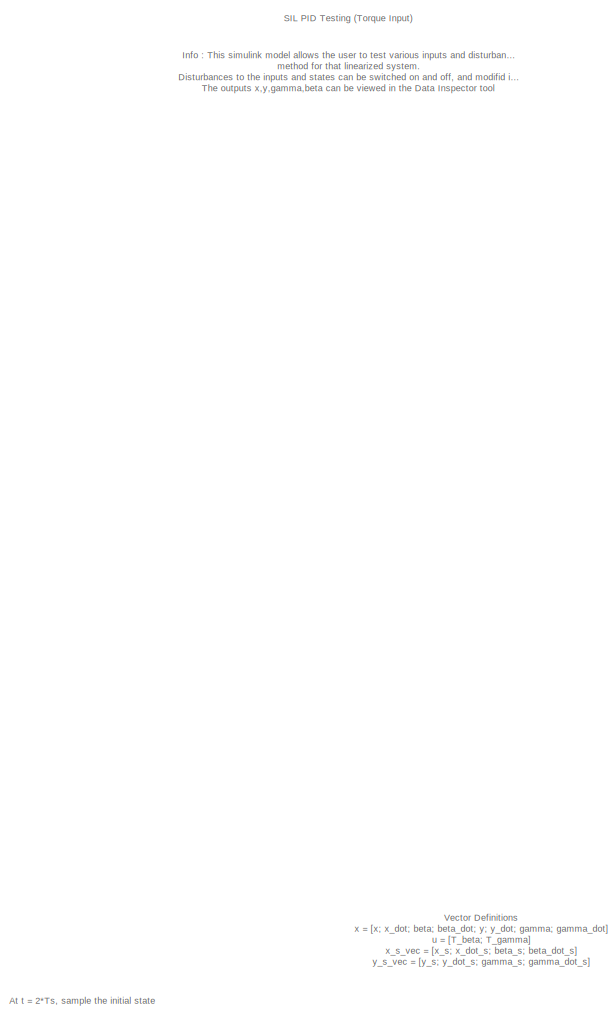
[diagram: root canvas - part 1/2, middle left region]
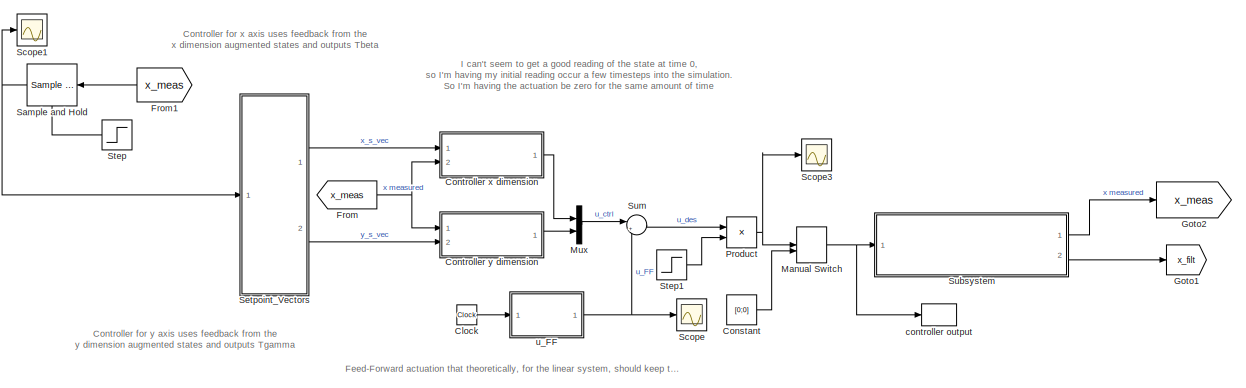
[diagram: root canvas - part 2/2, full width, bottom band]
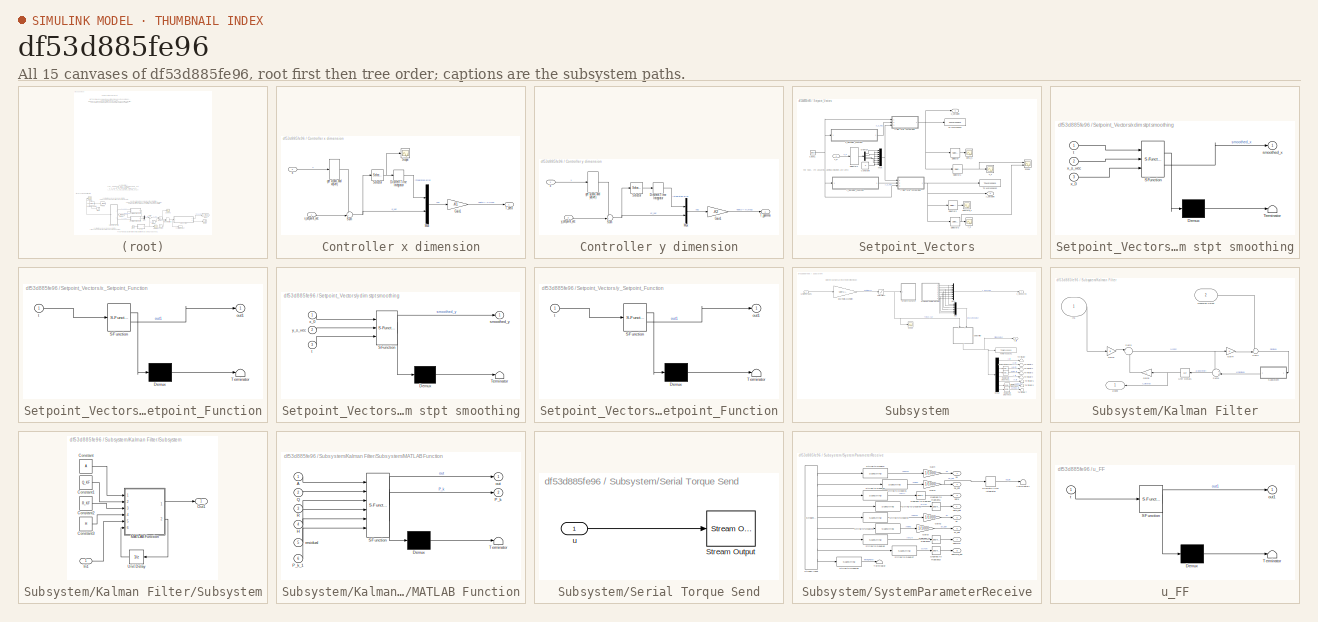
[diagram: thumbnail index - all 15 canvases of the model, root first then tree order]
MODEL slx_df53d885fe96
KIND model
CONFIG AbsTol = auto
CONFIG EnableMultiTasking = off
CONFIG FixedStep = Ts
CONFIG MaxStep = auto
CONFIG MinStep = auto
CONFIG RelTol = 1e-9
CONFIG SampleTimeConstraint = Unconstrained
CONFIG SolverName = FixedStepAuto
CONFIG StartTime = tspan(1)
CONFIG StopTime = tspan(2)
BLOCK [Clock] Clock
BLOCK [Constant] Constant
  Value = [0;0]
BLOCK [SubSystem] Controller x dimension
  Ports = [2, 1]
  RequestExecContextInheritance = off
BLOCK [DiscreteIntegrator] Controller x dimension/Discrete-Time Integrator
  ICPrevOutput = DiscIntNeverNeededParam
  ICPrevScaledInput = DiscIntNeverNeededParam
  InitialConditionSetting = Auto
  Ports = [1, 1]
  SampleTime = Ts
BLOCK [Gain] Controller x dimension/Gain1
  Gain = -K1
  Multiplication = Matrix(K*u)
BLOCK [Mux] Controller x dimension/Mux
  DisplayOption = bar
  Inputs = 2
  Ports = [2, 1]
BLOCK [Scope] Controller x dimension/Scope
  Floating = off
  NumInputPorts = 1
  Ports = [1]
  ScopeSpecificationString = Simulink.scopes.TimeScopeBlockCfg('CurrentConfiguration', extmgr.ConfigurationSet(extmgr.Configuration('Core','General UI',true),extmgr.Configuration('Core','Source UI',true),extmgr.Configuration('Sources','WiredSimulink',true,'DataLoggingVariableName','ScopeData1'),extmgr.Configuration('Visuals','Time Domain',true,'SerializedDisplays',{struct('MinYLimReal','-0.12038','MaxYLimReal','0.21338','YLab...<+1409ch>
BLOCK [Selector] Controller x dimension/Selector
  IndexOptions = Index vector (dialog)
  Indices = [1 ]
  InputPortWidth = 4
  OutputSizes = 1
  Ports = [1, 1]
BLOCK [Sum] Controller x dimension/Sum
  Inputs = -+|
  Ports = [2, 1]
BLOCK [Outport] Controller x dimension/T_beta
BLOCK [Selector] Controller x dimension/get x(pos) and xd(vel)
  IndexOptions = Index vector (dialog)
  Indices = [1:4]
  InputPortWidth = 8
  OutputSizes = 1
  Ports = [1, 1]
BLOCK [Inport] Controller x dimension/x
  Port = 2
BLOCK [Inport] Controller x dimension/x_setpoint_vec
BLOCK [SubSystem] Controller y dimension
  NameLocation = top
  Ports = [2, 1]
  RequestExecContextInheritance = off
BLOCK [DiscreteIntegrator] Controller y dimension/Discrete-Time Integrator
  ICPrevOutput = DiscIntNeverNeededParam
  ICPrevScaledInput = DiscIntNeverNeededParam
  InitialConditionSetting = Auto
  Ports = [1, 1]
  SampleTime = Ts
BLOCK [Gain] Controller y dimension/Gain1
  Gain = -K2
  Multiplication = Matrix(K*u)
BLOCK [Mux] Controller y dimension/Mux
  DisplayOption = bar
  Inputs = 2
  Ports = [2, 1]
BLOCK [Selector] Controller y dimension/Selector
  IndexOptions = Index vector (dialog)
  Indices = [1 ]
  InputPortWidth = 4
  OutputSizes = 1
  Ports = [1, 1]
BLOCK [Sum] Controller y dimension/Sum
  Inputs = -+|
  Ports = [2, 1]
BLOCK [Outport] Controller y dimension/T_gamma
BLOCK [Selector] Controller y dimension/get y(pos) and yd(vel)
  IndexOptions = Index vector (dialog)
  Indices = [5:8]
  InputPortWidth = 8
  OutputSizes = 1
  Ports = [1, 1]
BLOCK [Inport] Controller y dimension/x
BLOCK [Inport] Controller y dimension/y_setpoint_vec
  Port = 2
BLOCK [From] From
  GotoTag = x_meas
BLOCK [From] From1
  GotoTag = x_meas
  NameLocation = top
BLOCK [Goto] Goto1
  GotoTag = x_filt
BLOCK [Goto] Goto2
  GotoTag = x_meas
BLOCK [ManualSwitch] Manual Switch
BLOCK [Mux] Mux
  DisplayOption = bar
  Inputs = 2
  Ports = [2, 1]
BLOCK [Product] Product
  Ports = [2, 1]
BLOCK [Reference] Sample and Hold  REF=dspsigops/Sample
and Hold
  NameLocation = top
  Ports = [1, 1, 0, 1]
  SourceBlock = dspsigops/Sample\nand Hold
  SourceProductBaseCode = DS
  SourceType = Sample and Hold
BLOCK [Scope] Scope
  Floating = off
  NumInputPorts = 1
  Ports = [1]
  ScopeSpecificationString = Simulink.scopes.TimeScopeBlockCfg('CurrentConfiguration', extmgr.ConfigurationSet(extmgr.Configuration('Core','General UI',true),extmgr.Configuration('Core','Source UI',true),extmgr.Configuration('Sources','WiredSimulink',true,'DataLoggingVariableName','ScopeData1'),extmgr.Configuration('Visuals','Time Domain',true,'SerializedDisplays',{struct('MinYLimReal','-0.0162','MaxYLimReal','0.01149','YLabe...<+1389ch>
BLOCK [Scope] Scope1
  Floating = off
  NumInputPorts = 1
  Ports = [1]
  ScopeSpecificationString = Simulink.scopes.TimeScopeBlockCfg('CurrentConfiguration', extmgr.ConfigurationSet(extmgr.Configuration('Core','General UI',true),extmgr.Configuration('Core','Source UI',true),extmgr.Configuration('Sources','WiredSimulink',true,'DataLoggingVariableName','ScopeData2'),extmgr.Configuration('Visuals','Time Domain',true,'SerializedDisplays',{struct('MinYLimReal','-0.19772','MaxYLimReal','0.02948','YLab...<+1558ch>
BLOCK [Scope] Scope3
  Floating = off
  NumInputPorts = 1
  Ports = [1]
  ScopeSpecificationString = Simulink.scopes.TimeScopeBlockCfg('CurrentConfiguration', extmgr.ConfigurationSet(extmgr.Configuration('Core','General UI',true),extmgr.Configuration('Core','Source UI',true),extmgr.Configuration('Sources','WiredSimulink',true,'DataLoggingVariableName','ScopeData3'),extmgr.Configuration('Visuals','Time Domain',true,'SerializedDisplays',{struct('MinYLimReal','-181.03273','MaxYLimReal','156.93243','...<+1480ch>
BLOCK [SubSystem] Setpoint_Vectors
  Ports = [1, 2]
  RequestExecContextInheritance = off
BLOCK [Clock] Setpoint_Vectors/Clock1
BLOCK [Constant] Setpoint_Vectors/Constant
  Value = 0
BLOCK [Demux] Setpoint_Vectors/Demux
  Ports = [1, 4]
BLOCK [Mux] Setpoint_Vectors/Mux
  DisplayOption = bar
  Inputs = 8
  Ports = [8, 1]
BLOCK [Scope] Setpoint_Vectors/Scope
  Floating = off
  NumInputPorts = 2
  Ports = [2]
  ScopeSpecificationString = Simulink.scopes.TimeScopeBlockCfg('CurrentConfiguration', extmgr.ConfigurationSet(extmgr.Configuration('Core','General UI',true),extmgr.Configuration('Core','Source UI',true),extmgr.Configuration('Sources','WiredSimulink',true,'DataLoggingVariableName','ScopeData7'),extmgr.Configuration('Visuals','Time Domain',true,'SerializedDisplays',{struct('MinYLimReal','-0.1875','MaxYLimReal','0.1875','YLabel...<+1418ch>
BLOCK [Selector] Setpoint_Vectors/Selector
  IndexOptions = Index vector (dialog)
  Indices = [3]
  InputPortWidth = 4
  OutputSizes = 1
  Ports = [1, 1]
BLOCK [Selector] Setpoint_Vectors/Selector1
  IndexOptions = Index vector (dialog)
  Indices = [1]
  InputPortWidth = 4
  OutputSizes = 1
  Ports = [1, 1]
BLOCK [Selector] Setpoint_Vectors/Selector2
  IndexOptions = Index vector (dialog)
  Indices = [3]
  InputPortWidth = 4
  OutputSizes = 1
  Ports = [1, 1]
BLOCK [Selector] Setpoint_Vectors/Selector3
  IndexOptions = Index vector (dialog)
  Indices = [1]
  InputPortWidth = 4
  OutputSizes = 1
  Ports = [1, 1]
BLOCK [Selector] Setpoint_Vectors/Selector4
  IndexOptions = Index vector (dialog)
  Indices = [1 3 5 7]
  InputPortWidth = 8
  OutputSizes = 1
  Ports = [1, 1]
BLOCK [ToWorkspace] Setpoint_Vectors/To Workspace
  FixptAsFi = on
  MaxDataPoints = inf
  Ports = [1]
  SampleTime = -1
  VariableName = x_s_vec
BLOCK [ToWorkspace] Setpoint_Vectors/To Workspace2
  FixptAsFi = on
  MaxDataPoints = inf
  Ports = [1]
  SampleTime = -1
  VariableName = y_s_vec
BLOCK [Scope] Setpoint_Vectors/beta_s
  Floating = off
  NumInputPorts = 1
  Ports = [1]
  ScopeSpecificationString = Simulink.scopes.TimeScopeBlockCfg('CurrentConfiguration', extmgr.ConfigurationSet(extmgr.Configuration('Core','General UI',true),extmgr.Configuration('Core','Source UI',true),extmgr.Configuration('Sources','WiredSimulink',true,'DataLoggingVariableName','ScopeData2'),extmgr.Configuration('Visuals','Time Domain',true,'SerializedDisplays',{struct('MinYLimReal','-1.15265','MaxYLimReal','0.83023','YLab...<+1411ch>
BLOCK [Scope] Setpoint_Vectors/gamma_s
  Floating = off
  NumInputPorts = 1
  Ports = [1]
  ScopeSpecificationString = Simulink.scopes.TimeScopeBlockCfg('CurrentConfiguration', extmgr.ConfigurationSet(extmgr.Configuration('Core','General UI',true),extmgr.Configuration('Core','Source UI',true),extmgr.Configuration('Sources','WiredSimulink',true,'DataLoggingVariableName','ScopeData5'),extmgr.Configuration('Visuals','Time Domain',true,'SerializedDisplays',{struct('MinYLimReal','-0.02268','MaxYLimReal','0.01988','YLab...<+1423ch>
BLOCK [SubSystem] Setpoint_Vectors/x dim stpt smoothing
  ErrorFcn = Stateflow.Translate.translate
  PermitHierarchicalResolution = ExplicitOnly
  Ports = [3, 1]
  RequestExecContextInheritance = off
  SFBlockType = MATLAB Function
  TreatAsAtomicUnit = on
BLOCK [Demux] Setpoint_Vectors/x dim stpt smoothing/ Demux 
  Outputs = 1
  Ports = [1, 1]
BLOCK [S-Function] Setpoint_Vectors/x dim stpt smoothing/ SFunction 
  EnableBusSupport = on
  FunctionName = sf_sfun
  Parameters = Tau
  PortCounts = [3 2]
  Ports = [3, 2]
  SFcnIsStateOwnerBlock = off
  SFunctionDeploymentMode = off
  Tag = Stateflow S-Function 6
BLOCK [Terminator] Setpoint_Vectors/x dim stpt smoothing/ Terminator 
BLOCK [Outport] Setpoint_Vectors/x dim stpt smoothing/smoothed_x
BLOCK [Inport] Setpoint_Vectors/x dim stpt smoothing/t
BLOCK [Inport] Setpoint_Vectors/x dim stpt smoothing/x_0
  Port = 3
BLOCK [Inport] Setpoint_Vectors/x dim stpt smoothing/x_s_vec
  Port = 2
BLOCK [Inport] Setpoint_Vectors/x_0
BLOCK [SubSystem] Setpoint_Vectors/x_Setpoint_Function
  ErrorFcn = Stateflow.Translate.translate
  PermitHierarchicalResolution = ExplicitOnly
  Ports = [1, 1]
  RequestExecContextInheritance = off
  SFBlockType = MATLAB Function
  TreatAsAtomicUnit = on
BLOCK [Demux] Setpoint_Vectors/x_Setpoint_Function/ Demux 
  Outputs = 1
  Ports = [1, 1]
BLOCK [S-Function] Setpoint_Vectors/x_Setpoint_Function/ SFunction 
  EnableBusSupport = on
  FunctionName = sf_sfun
  PortCounts = [1 2]
  Ports = [1, 2]
  SFcnIsStateOwnerBlock = off
  SFunctionDeploymentMode = off
  Tag = Stateflow S-Function 2
BLOCK [Terminator] Setpoint_Vectors/x_Setpoint_Function/ Terminator 
BLOCK [Outport] Setpoint_Vectors/x_Setpoint_Function/out1
BLOCK [Inport] Setpoint_Vectors/x_Setpoint_Function/t
BLOCK [Scope] Setpoint_Vectors/x_s
  Floating = off
  NumInputPorts = 1
  Ports = [1]
  ScopeSpecificationString = Simulink.scopes.TimeScopeBlockCfg('CurrentConfiguration', extmgr.ConfigurationSet(extmgr.Configuration('Core','General UI',true),extmgr.Configuration('Core','Source UI',true),extmgr.Configuration('Sources','WiredSimulink',true,'DataLoggingVariableName','ScopeData4'),extmgr.Configuration('Visuals','Time Domain',true,'SerializedDisplays',{struct('MinYLimReal','-0.0419','MaxYLimReal','0.00466','YLabe...<+1444ch>
BLOCK [Outport] Setpoint_Vectors/x_setpoint
BLOCK [SubSystem] Setpoint_Vectors/y dim stpt smoothing
  ErrorFcn = Stateflow.Translate.translate
  PermitHierarchicalResolution = ExplicitOnly
  Ports = [3, 1]
  RequestExecContextInheritance = off
  SFBlockType = MATLAB Function
  TreatAsAtomicUnit = on
BLOCK [Demux] Setpoint_Vectors/y dim stpt smoothing/ Demux 
  Outputs = 1
  Ports = [1, 1]
BLOCK [S-Function] Setpoint_Vectors/y dim stpt smoothing/ SFunction 
  EnableBusSupport = on
  FunctionName = sf_sfun
  Parameters = Tau
  PortCounts = [3 2]
  Ports = [3, 2]
  SFcnIsStateOwnerBlock = off
  SFunctionDeploymentMode = off
  Tag = Stateflow S-Function 1
BLOCK [Terminator] Setpoint_Vectors/y dim stpt smoothing/ Terminator 
BLOCK [Outport] Setpoint_Vectors/y dim stpt smoothing/smoothed_y
BLOCK [Inport] Setpoint_Vectors/y dim stpt smoothing/t
  Port = 3
BLOCK [Inport] Setpoint_Vectors/y dim stpt smoothing/x_0
BLOCK [Inport] Setpoint_Vectors/y dim stpt smoothing/y_s_vec
  Port = 2
BLOCK [SubSystem] Setpoint_Vectors/y_Setpoint_Function
  ErrorFcn = Stateflow.Translate.translate
  PermitHierarchicalResolution = ExplicitOnly
  Ports = [1, 1]
  RequestExecContextInheritance = off
  SFBlockType = MATLAB Function
  TreatAsAtomicUnit = on
BLOCK [Demux] Setpoint_Vectors/y_Setpoint_Function/ Demux 
  Outputs = 1
  Ports = [1, 1]
BLOCK [S-Function] Setpoint_Vectors/y_Setpoint_Function/ SFunction 
  EnableBusSupport = on
  FunctionName = sf_sfun
  PortCounts = [1 2]
  Ports = [1, 2]
  SFcnIsStateOwnerBlock = off
  SFunctionDeploymentMode = off
  Tag = Stateflow S-Function 3
BLOCK [Terminator] Setpoint_Vectors/y_Setpoint_Function/ Terminator 
BLOCK [Outport] Setpoint_Vectors/y_Setpoint_Function/out1
BLOCK [Inport] Setpoint_Vectors/y_Setpoint_Function/t
BLOCK [Scope] Setpoint_Vectors/y_s
  Floating = off
  NumInputPorts = 1
  Ports = [1]
  ScopeSpecificationString = Simulink.scopes.TimeScopeBlockCfg('CurrentConfiguration', extmgr.ConfigurationSet(extmgr.Configuration('Core','General UI',true),extmgr.Configuration('Core','Source UI',true),extmgr.Configuration('Sources','WiredSimulink',true,'DataLoggingVariableName','ScopeData6'),extmgr.Configuration('Visuals','Time Domain',true,'SerializedDisplays',{struct('MinYLimReal','-0.05539','MaxYLimReal','0.00615','YLab...<+1393ch>
BLOCK [Outport] Setpoint_Vectors/y_setpoint
  Port = 2
BLOCK [Step] Step
  NameLocation = top
  SampleTime = 0
  Time = 2*Ts
BLOCK [Step] Step1
  SampleTime = 0
  Time = 2*Ts
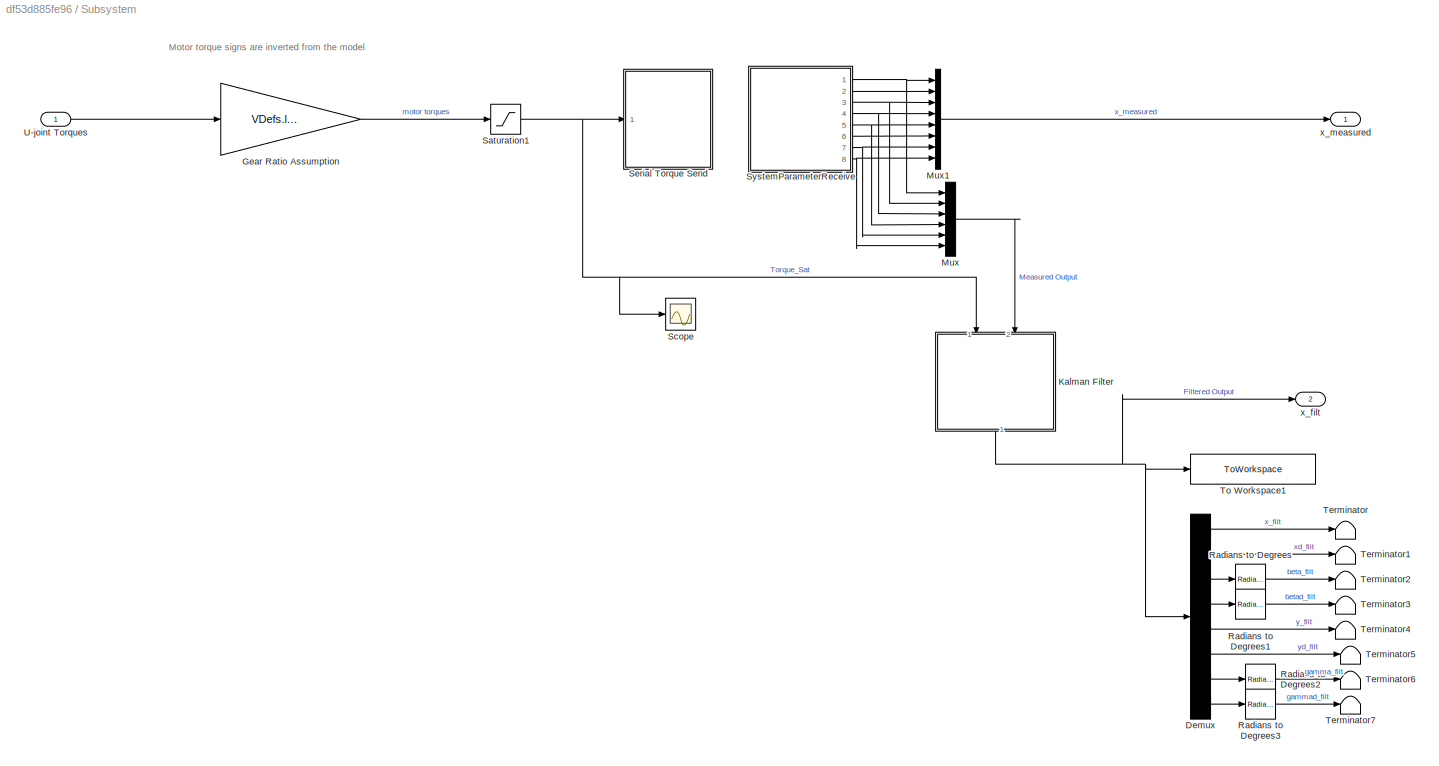
BLOCK [SubSystem] Subsystem
  Ports = [1, 2]
  RequestExecContextInheritance = off
BLOCK [Demux] Subsystem/Demux
  Commented = on
  Outputs = 8
  Ports = [1, 8]
BLOCK [Gain] Subsystem/Gear Ratio Assumption
  Gain = VDefs.l_carm/VDefs.lp
BLOCK [SubSystem] Subsystem/Kalman Filter
  Commented = on
  NameLocation = left
  Ports = [2, 1]
  RequestExecContextInheritance = off
BLOCK [Gain] Subsystem/Kalman Filter/Gain3
  Gain = B
  Multiplication = Matrix(K*u)
BLOCK [Gain] Subsystem/Kalman Filter/Gain4
  Gain = H
  Multiplication = Matrix(K*u)
BLOCK [Gain] Subsystem/Kalman Filter/Gain5
  Gain = A
  Multiplication = Matrix(K*u)
BLOCK [Inport] Subsystem/Kalman Filter/In1
  IconDisplay = Port number and signal name
BLOCK [Inport] Subsystem/Kalman Filter/Measured Output
  IconDisplay = Port number and signal name
  Port = 2
BLOCK [SubSystem] Subsystem/Kalman Filter/Subsystem
  Ports = [1, 1]
  RequestExecContextInheritance = off
BLOCK [Constant] Subsystem/Kalman Filter/Subsystem/Constant
  Value = A
  VectorParams1D = off
BLOCK [Constant] Subsystem/Kalman Filter/Subsystem/Constant1
  Value = Q_KF
  VectorParams1D = off
BLOCK [Constant] Subsystem/Kalman Filter/Subsystem/Constant2
  Value = R_KF
  VectorParams1D = off
BLOCK [Constant] Subsystem/Kalman Filter/Subsystem/Constant3
  Value = H
  VectorParams1D = off
BLOCK [Inport] Subsystem/Kalman Filter/Subsystem/In1
BLOCK [SubSystem] Subsystem/Kalman Filter/Subsystem/MATLAB Function
  ErrorFcn = Stateflow.Translate.translate
  PermitHierarchicalResolution = ExplicitOnly
  Ports = [6, 2]
  RequestExecContextInheritance = off
  SFBlockType = MATLAB Function
  TreatAsAtomicUnit = on
BLOCK [Demux] Subsystem/Kalman Filter/Subsystem/MATLAB Function/ Demux 
  Outputs = 1
  Ports = [1, 1]
BLOCK [S-Function] Subsystem/Kalman Filter/Subsystem/MATLAB Function/ SFunction 
  EnableBusSupport = on
  FunctionName = sf_sfun
  PortCounts = [6 3]
  Ports = [6, 3]
  SFcnIsStateOwnerBlock = off
  SFunctionDeploymentMode = off
  Tag = Stateflow S-Function 4
BLOCK [Terminator] Subsystem/Kalman Filter/Subsystem/MATLAB Function/ Terminator 
BLOCK [Inport] Subsystem/Kalman Filter/Subsystem/MATLAB Function/A
BLOCK [Inport] Subsystem/Kalman Filter/Subsystem/MATLAB Function/H
  Port = 4
BLOCK [Outport] Subsystem/Kalman Filter/Subsystem/MATLAB Function/P_k
  Port = 2
  VectorParamsAs1DForOutWhenUnconnected = off
BLOCK [Inport] Subsystem/Kalman Filter/Subsystem/MATLAB Function/P_k_1
  Port = 6
BLOCK [Inport] Subsystem/Kalman Filter/Subsystem/MATLAB Function/Q
  Port = 2
BLOCK [Inport] Subsystem/Kalman Filter/Subsystem/MATLAB Function/R
  Port = 3
BLOCK [Outport] Subsystem/Kalman Filter/Subsystem/MATLAB Function/out
  VectorParamsAs1DForOutWhenUnconnected = off
BLOCK [Inport] Subsystem/Kalman Filter/Subsystem/MATLAB Function/residual
  Port = 5
BLOCK [Outport] Subsystem/Kalman Filter/Subsystem/Out1
  VectorParamsAs1DForOutWhenUnconnected = off
BLOCK [UnitDelay] Subsystem/Kalman Filter/Subsystem/Unit Delay
  HasFrameUpgradeWarning = on
  InitialCondition = zeros(8,8)
  SampleTime = Ts
BLOCK [Sum] Subsystem/Kalman Filter/Sum3
  Inputs = |++
  Ports = [2, 1]
BLOCK [Sum] Subsystem/Kalman Filter/Sum4
  Inputs = +-|
  Ports = [2, 1]
BLOCK [Sum] Subsystem/Kalman Filter/Sum5
  Inputs = ++|
  Ports = [2, 1]
BLOCK [UnitDelay] Subsystem/Kalman Filter/Unit Delay1
  HasFrameUpgradeWarning = on
  InitialCondition = zeros(8,1)
  SampleTime = Ts
BLOCK [Outport] Subsystem/Kalman Filter/a-post
  IconDisplay = Signal name
  VectorParamsAs1DForOutWhenUnconnected = off
BLOCK [Mux] Subsystem/Mux
  DisplayOption = bar
  Inputs = 6
  Ports = [6, 1]
BLOCK [Mux] Subsystem/Mux1
  DisplayOption = bar
  Inputs = 8
  Ports = [8, 1]
BLOCK [Reference] Subsystem/Radians to Degrees  REF=simulink_extras/Transformations/Radians
to Degrees
  Commented = on
  Ports = [1, 1]
  SourceBlock = simulink_extras/Transformations/Radians\nto Degrees
  SourceProductBaseCode = SL
  SourceType = RadiansToDegrees
BLOCK [Reference] Subsystem/Radians to Degrees1  REF=simulink_extras/Transformations/Radians
to Degrees
  Commented = on
  Ports = [1, 1]
  SourceBlock = simulink_extras/Transformations/Radians\nto Degrees
  SourceProductBaseCode = SL
  SourceType = RadiansToDegrees
BLOCK [Reference] Subsystem/Radians to Degrees2  REF=simulink_extras/Transformations/Radians
to Degrees
  Commented = on
  Ports = [1, 1]
  SourceBlock = simulink_extras/Transformations/Radians\nto Degrees
  SourceProductBaseCode = SL
  SourceType = RadiansToDegrees
BLOCK [Reference] Subsystem/Radians to Degrees3  REF=simulink_extras/Transformations/Radians
to Degrees
  Commented = on
  Ports = [1, 1]
  SourceBlock = simulink_extras/Transformations/Radians\nto Degrees
  SourceProductBaseCode = SL
  SourceType = RadiansToDegrees
BLOCK [Saturate] Subsystem/Saturation1
  LowerLimit = -1.5
  UpperLimit = 1.5
BLOCK [Scope] Subsystem/Scope
  Floating = off
  NumInputPorts = 1
  Ports = [1]
  ScopeSpecificationString = Simulink.scopes.TimeScopeBlockCfg('CurrentConfiguration', extmgr.ConfigurationSet(extmgr.Configuration('Core','General UI',true),extmgr.Configuration('Core','Source UI',true),extmgr.Configuration('Sources','WiredSimulink',true,'DataLoggingVariableName','ScopeData1'),extmgr.Configuration('Visuals','Time Domain',true,'SerializedDisplays',{struct('MinYLimReal','-1.875','MaxYLimReal','1.875','YLabelRe...<+1418ch>
BLOCK [SubSystem] Subsystem/Serial Torque Send
  Ports = [1]
  RequestExecContextInheritance = off
BLOCK [Reference] Subsystem/Serial Torque Send/Stream Output  REF=sldrtlib/Stream Output
  AttributesFormatString = Serial Port [6]
  Ports = [1]
  SourceBlock = sldrtlib/Stream Output
  SourceProductBaseCode = WT
  SourceType = Simulink Desktop Real-Time Stream Output
BLOCK [Inport] Subsystem/Serial Torque Send/u
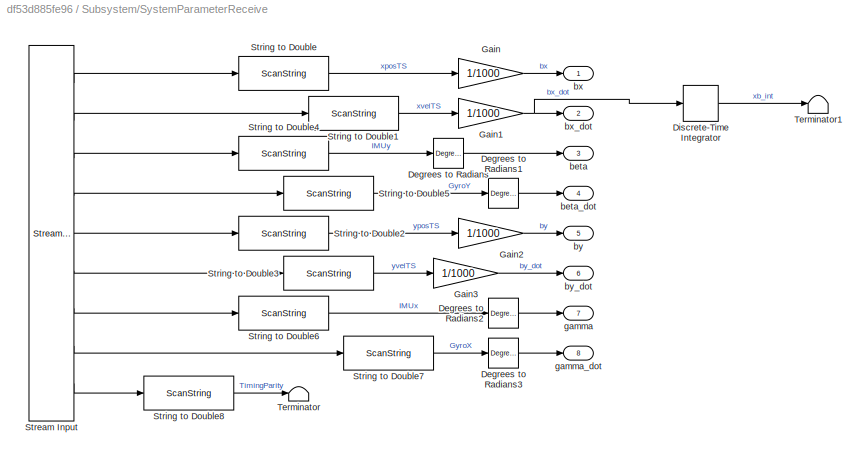
BLOCK [SubSystem] Subsystem/SystemParameterReceive
  Ports = [0, 8]
  RequestExecContextInheritance = off
BLOCK [Reference] Subsystem/SystemParameterReceive/Degrees to Radians  REF=simulink_extras/Transformations/Degrees to
Radians
  Ports = [1, 1]
  SourceBlock = simulink_extras/Transformations/Degrees to\nRadians
  SourceProductBaseCode = SL
  SourceType = DegreesToRadians
BLOCK [Reference] Subsystem/SystemParameterReceive/Degrees to Radians1  REF=simulink_extras/Transformations/Degrees to
Radians
  Ports = [1, 1]
  SourceBlock = simulink_extras/Transformations/Degrees to\nRadians
  SourceProductBaseCode = SL
  SourceType = DegreesToRadians
BLOCK [Reference] Subsystem/SystemParameterReceive/Degrees to Radians2  REF=simulink_extras/Transformations/Degrees to
Radians
  Ports = [1, 1]
  SourceBlock = simulink_extras/Transformations/Degrees to\nRadians
  SourceProductBaseCode = SL
  SourceType = DegreesToRadians
BLOCK [Reference] Subsystem/SystemParameterReceive/Degrees to Radians3  REF=simulink_extras/Transformations/Degrees to
Radians
  Ports = [1, 1]
  SourceBlock = simulink_extras/Transformations/Degrees to\nRadians
  SourceProductBaseCode = SL
  SourceType = DegreesToRadians
BLOCK [DiscreteIntegrator] Subsystem/SystemParameterReceive/Discrete-Time Integrator
  ICPrevOutput = DiscIntNeverNeededParam
  ICPrevScaledInput = DiscIntNeverNeededParam
  InitialConditionSetting = Auto
  Ports = [1, 1]
  SampleTime = Ts
BLOCK [Gain] Subsystem/SystemParameterReceive/Gain
  Gain = 1/1000
  OutDataTypeStr = double
BLOCK [Gain] Subsystem/SystemParameterReceive/Gain1
  Gain = 1/1000
  OutDataTypeStr = double
BLOCK [Gain] Subsystem/SystemParameterReceive/Gain2
  Gain = 1/1000
  OutDataTypeStr = double
BLOCK [Gain] Subsystem/SystemParameterReceive/Gain3
  Gain = 1/1000
  OutDataTypeStr = double
BLOCK [Reference] Subsystem/SystemParameterReceive/Stream Input  REF=sldrtlib/Stream Input
  AttributesFormatString = Serial Port [6]
  Ports = [0, 9]
  SourceBlock = sldrtlib/Stream Input
  SourceProductBaseCode = WT
  SourceType = Simulink Desktop Real-Time Stream Input
BLOCK [ScanString] Subsystem/SystemParameterReceive/String to Double
  Format = "%d"
  Ports = [1, 1]
BLOCK [ScanString] Subsystem/SystemParameterReceive/String to Double1
  Format = "%lf"
  Ports = [1, 1]
BLOCK [ScanString] Subsystem/SystemParameterReceive/String to Double2
  Format = "%lf"
  Ports = [1, 1]
BLOCK [ScanString] Subsystem/SystemParameterReceive/String to Double3
  Format = "%lf"
  Ports = [1, 1]
BLOCK [ScanString] Subsystem/SystemParameterReceive/String to Double4
  Format = "%lf"
  Ports = [1, 1]
BLOCK [ScanString] Subsystem/SystemParameterReceive/String to Double5
  Format = "%lf"
  Ports = [1, 1]
BLOCK [ScanString] Subsystem/SystemParameterReceive/String to Double6
  Format = "%lf"
  Ports = [1, 1]
BLOCK [ScanString] Subsystem/SystemParameterReceive/String to Double7
  Format = "%lf"
  Ports = [1, 1]
BLOCK [ScanString] Subsystem/SystemParameterReceive/String to Double8
  Format = "%lf"
  Ports = [1, 1]
BLOCK [Terminator] Subsystem/SystemParameterReceive/Terminator
BLOCK [Terminator] Subsystem/SystemParameterReceive/Terminator1
BLOCK [Outport] Subsystem/SystemParameterReceive/beta
  Port = 3
BLOCK [Outport] Subsystem/SystemParameterReceive/beta_dot
  Port = 4
BLOCK [Outport] Subsystem/SystemParameterReceive/bx
BLOCK [Outport] Subsystem/SystemParameterReceive/bx_dot
  Port = 2
BLOCK [Outport] Subsystem/SystemParameterReceive/by
  Port = 5
BLOCK [Outport] Subsystem/SystemParameterReceive/by_dot
  Port = 6
BLOCK [Outport] Subsystem/SystemParameterReceive/gamma
  Port = 7
BLOCK [Outport] Subsystem/SystemParameterReceive/gamma_dot
  Port = 8
BLOCK [Terminator] Subsystem/Terminator
  Commented = on
BLOCK [Terminator] Subsystem/Terminator1
  Commented = on
BLOCK [Terminator] Subsystem/Terminator2
  Commented = on
BLOCK [Terminator] Subsystem/Terminator3
  Commented = on
BLOCK [Terminator] Subsystem/Terminator4
  Commented = on
BLOCK [Terminator] Subsystem/Terminator5
  Commented = on
BLOCK [Terminator] Subsystem/Terminator6
  Commented = on
BLOCK [Terminator] Subsystem/Terminator7
  Commented = on
BLOCK [ToWorkspace] Subsystem/To Workspace1
  Commented = on
  FixptAsFi = on
  MaxDataPoints = inf
  Ports = [1]
  SampleTime = -1
  VariableName = FilteredOutput
BLOCK [Inport] Subsystem/U-joint Torques
BLOCK [Outport] Subsystem/x_filt
  Port = 2
BLOCK [Outport] Subsystem/x_measured
BLOCK [Sum] Sum
  Inputs = |++
  Ports = [2, 1]
BLOCK [ToWorkspace] controller output
  FixptAsFi = on
  MaxDataPoints = inf
  Ports = [1]
  SampleTime = -1
  VariableName = u
BLOCK [SubSystem] u_FF
  ErrorFcn = Stateflow.Translate.translate
  PermitHierarchicalResolution = ExplicitOnly
  Ports = [1, 1]
  RequestExecContextInheritance = off
  SFBlockType = MATLAB Function
  TreatAsAtomicUnit = on
BLOCK [Demux] u_FF/ Demux 
  Outputs = 1
  Ports = [1, 1]
BLOCK [S-Function] u_FF/ SFunction 
  EnableBusSupport = on
  FunctionName = sf_sfun
  PortCounts = [1 2]
  Ports = [1, 2]
  SFcnIsStateOwnerBlock = off
  SFunctionDeploymentMode = off
  Tag = Stateflow S-Function 5
BLOCK [Terminator] u_FF/ Terminator 
BLOCK [Outport] u_FF/out1
BLOCK [Inport] u_FF/t
ANNOTATION (root): Vector Definitions x = [x; x_dot; beta; beta_dot; y; y_dot; gamma; gamma_dot] u = [T_beta; T_gamma] x_s_vec = [x_s; x_dot_s; beta_s; beta_dot_s ] y_s_vec = [y_s; y_dot_s; gamma_s; gamma_dot_s ]
ANNOTATION (root): SIL PID Testing (Torque Input)
ANNOTATION (root): At t = 2*Ts, sample the initial state
ANNOTATION (root): Controller for x axis uses feedback from the x dimension augmented states and outputs Tbeta
ANNOTATION (root): Controller for y axis uses feedback from the y dimension augmented states and outputs Tgamma
ANNOTATION (root): Feed-Forward actuation that theoretically, for the linear system, should keep the system on the setpoint if it's there already
ANNOTATION (root): I can't seem to get a good reading of the state at time 0, so I'm having my initial reading occur a few timesteps into the simulation. So I'm having the actuation be zero for the same amount of time
ANNOTATION (root): Info : This simulink model allows the user to test various inputs and disturbances to the open loop and closed loop ball and plate system. The controller gain matrix, K, was found from pole placement method for that linearized system. Disturbances to the inputs and states can be switched on and off, and modifid inside the subsystems. The outputs x,y,gamma,beta can be viewed in the Data Inspector t...<+3ch>
ANNOTATION Setpoint_Vectors: For now, I'm assuming all initial velocities are zero
ANNOTATION Subsystem: Motor torque signs are inverted from the model
LINE Clock:1 -> u_FF:1
LINE Constant:1 -> Manual Switch:2
LINE Controller x dimension/Discrete-Time Integrator:1 -> Controller x dimension/Mux:1
LINE Controller x dimension/Gain1:1 -> Controller x dimension/T_beta:1
LINE Controller x dimension/Mux:1 -> Controller x dimension/Gain1:1
NET Controller x dimension/Selector:1 -> Controller x dimension/Discrete-Time Integrator:1, Controller x dimension/Scope:1
NET Controller x dimension/Sum:1 -> Controller x dimension/Mux:2, Controller x dimension/Selector:1
LINE Controller x dimension/get x(pos) and xd(vel):1 -> Controller x dimension/Sum:1
LINE Controller x dimension/x:1 -> Controller x dimension/get x(pos) and xd(vel):1
LINE Controller x dimension/x_setpoint_vec:1 -> Controller x dimension/Sum:2
LINE Controller x dimension:1 -> Mux:1
LINE Controller y dimension/Discrete-Time Integrator:1 -> Controller y dimension/Mux:1
LINE Controller y dimension/Gain1:1 -> Controller y dimension/T_gamma:1
LINE Controller y dimension/Mux:1 -> Controller y dimension/Gain1:1
LINE Controller y dimension/Selector:1 -> Controller y dimension/Discrete-Time Integrator:1
NET Controller y dimension/Sum:1 -> Controller y dimension/Mux:2, Controller y dimension/Selector:1
LINE Controller y dimension/get y(pos) and yd(vel):1 -> Controller y dimension/Sum:1
LINE Controller y dimension/x:1 -> Controller y dimension/get y(pos) and yd(vel):1
LINE Controller y dimension/y_setpoint_vec:1 -> Controller y dimension/Sum:2
LINE Controller y dimension:1 -> Mux:2
LINE From1:1 -> Sample and Hold:1
NET From:1 -> Controller x dimension:2, Controller y dimension:1
NET Manual Switch:1 -> Subsystem:1, controller output:1
LINE Mux:1 -> Sum:1
NET Product:1 -> Manual Switch:1, Scope3:1
NET Sample and Hold:1 -> Scope1:1, Setpoint_Vectors:1
NET Setpoint_Vectors/Clock1:1 -> Setpoint_Vectors/x dim stpt smoothing:1, Setpoint_Vectors/x_Setpoint_Function:1, Setpoint_Vectors/y dim stpt smoothing:3, Setpoint_Vectors/y_Setpoint_Function:1
NET Setpoint_Vectors/Constant:1 -> Setpoint_Vectors/Mux:2, Setpoint_Vectors/Mux:4, Setpoint_Vectors/Mux:6, Setpoint_Vectors/Mux:8
LINE Setpoint_Vectors/Demux:1 -> Setpoint_Vectors/Mux:1
LINE Setpoint_Vectors/Demux:2 -> Setpoint_Vectors/Mux:3
LINE Setpoint_Vectors/Demux:3 -> Setpoint_Vectors/Mux:5
LINE Setpoint_Vectors/Demux:4 -> Setpoint_Vectors/Mux:7
NET Setpoint_Vectors/Mux:1 -> Setpoint_Vectors/x dim stpt smoothing:3, Setpoint_Vectors/y dim stpt smoothing:1
NET Setpoint_Vectors/Selector1:1 -> Setpoint_Vectors/Scope:1, Setpoint_Vectors/x_s:1
LINE Setpoint_Vectors/Selector2:1 -> Setpoint_Vectors/gamma_s:1
NET Setpoint_Vectors/Selector3:1 -> Setpoint_Vectors/Scope:2, Setpoint_Vectors/y_s:1
LINE Setpoint_Vectors/Selector4:1 -> Setpoint_Vectors/Demux:1
LINE Setpoint_Vectors/Selector:1 -> Setpoint_Vectors/beta_s:1
NET Setpoint_Vectors/x dim stpt smoothing:1 -> Setpoint_Vectors/Selector1:1, Setpoint_Vectors/Selector:1, Setpoint_Vectors/To Workspace:1, Setpoint_Vectors/x_setpoint:1
LINE Setpoint_Vectors/x_0:1 -> Setpoint_Vectors/Selector4:1
LINE Setpoint_Vectors/x_Setpoint_Function:1 -> Setpoint_Vectors/x dim stpt smoothing:2
NET Setpoint_Vectors/y dim stpt smoothing:1 -> Setpoint_Vectors/Selector2:1, Setpoint_Vectors/Selector3:1, Setpoint_Vectors/To Workspace2:1, Setpoint_Vectors/y_setpoint:1
LINE Setpoint_Vectors/y_Setpoint_Function:1 -> Setpoint_Vectors/y dim stpt smoothing:2
LINE Setpoint_Vectors:1 -> Controller x dimension:1
LINE Setpoint_Vectors:2 -> Controller y dimension:2
LINE Step1:1 -> Product:2
LINE Step:1 -> Sample and Hold:trigger
LINE Subsystem/Demux:1 -> Subsystem/Terminator:1
LINE Subsystem/Demux:2 -> Subsystem/Terminator1:1
LINE Subsystem/Demux:3 -> Subsystem/Radians to Degrees:1
LINE Subsystem/Demux:4 -> Subsystem/Radians to Degrees1:1
LINE Subsystem/Demux:5 -> Subsystem/Terminator4:1
LINE Subsystem/Demux:6 -> Subsystem/Terminator5:1
LINE Subsystem/Demux:7 -> Subsystem/Radians to Degrees2:1
LINE Subsystem/Demux:8 -> Subsystem/Radians to Degrees3:1
LINE Subsystem/Gear Ratio Assumption:1 -> Subsystem/Saturation1:1
LINE Subsystem/Kalman Filter/Gain3:1 -> Subsystem/Kalman Filter/Sum3:1
LINE Subsystem/Kalman Filter/Gain4:1 -> Subsystem/Kalman Filter/Sum4:2
LINE Subsystem/Kalman Filter/Gain5:1 -> Subsystem/Kalman Filter/Sum3:2
LINE Subsystem/Kalman Filter/In1:1 -> Subsystem/Kalman Filter/Gain3:1
LINE Subsystem/Kalman Filter/Measured Output:1 -> Subsystem/Kalman Filter/Sum4:1
LINE Subsystem/Kalman Filter/Subsystem/Constant1:1 -> Subsystem/Kalman Filter/Subsystem/MATLAB Function:2
LINE Subsystem/Kalman Filter/Subsystem/Constant2:1 -> Subsystem/Kalman Filter/Subsystem/MATLAB Function:3
LINE Subsystem/Kalman Filter/Subsystem/Constant3:1 -> Subsystem/Kalman Filter/Subsystem/MATLAB Function:4
LINE Subsystem/Kalman Filter/Subsystem/Constant:1 -> Subsystem/Kalman Filter/Subsystem/MATLAB Function:1
LINE Subsystem/Kalman Filter/Subsystem/In1:1 -> Subsystem/Kalman Filter/Subsystem/MATLAB Function:5
LINE Subsystem/Kalman Filter/Subsystem/MATLAB Function:1 -> Subsystem/Kalman Filter/Subsystem/Out1:1
LINE Subsystem/Kalman Filter/Subsystem/MATLAB Function:2 -> Subsystem/Kalman Filter/Subsystem/Unit Delay:1
LINE Subsystem/Kalman Filter/Subsystem/Unit Delay:1 -> Subsystem/Kalman Filter/Subsystem/MATLAB Function:6
LINE Subsystem/Kalman Filter/Subsystem:1 -> Subsystem/Kalman Filter/Sum5:2
NET Subsystem/Kalman Filter/Sum3:1 -> Subsystem/Kalman Filter/Gain4:1, Subsystem/Kalman Filter/Sum5:1
LINE Subsystem/Kalman Filter/Sum4:1 -> Subsystem/Kalman Filter/Subsystem:1
LINE Subsystem/Kalman Filter/Sum5:1 -> Subsystem/Kalman Filter/Unit Delay1:1
NET Subsystem/Kalman Filter/Unit Delay1:1 -> Subsystem/Kalman Filter/Gain5:1, Subsystem/Kalman Filter/a-post:1
NET Subsystem/Kalman Filter:1 -> Subsystem/Demux:1, Subsystem/To Workspace1:1, Subsystem/x_filt:1
LINE Subsystem/Mux1:1 -> Subsystem/x_measured:1
LINE Subsystem/Mux:1 -> Subsystem/Kalman Filter:2
LINE Subsystem/Radians to Degrees1:1 -> Subsystem/Terminator3:1
LINE Subsystem/Radians to Degrees2:1 -> Subsystem/Terminator6:1
LINE Subsystem/Radians to Degrees3:1 -> Subsystem/Terminator7:1
LINE Subsystem/Radians to Degrees:1 -> Subsystem/Terminator2:1
NET Subsystem/Saturation1:1 -> Subsystem/Kalman Filter:1, Subsystem/Scope:1, Subsystem/Serial Torque Send:1
LINE Subsystem/Serial Torque Send/u:1 -> Subsystem/Serial Torque Send/Stream Output:1
LINE Subsystem/SystemParameterReceive/Degrees to Radians1:1 -> Subsystem/SystemParameterReceive/beta_dot:1
LINE Subsystem/SystemParameterReceive/Degrees to Radians2:1 -> Subsystem/SystemParameterReceive/gamma:1
LINE Subsystem/SystemParameterReceive/Degrees to Radians3:1 -> Subsystem/SystemParameterReceive/gamma_dot:1
LINE Subsystem/SystemParameterReceive/Degrees to Radians:1 -> Subsystem/SystemParameterReceive/beta:1
LINE Subsystem/SystemParameterReceive/Discrete-Time Integrator:1 -> Subsystem/SystemParameterReceive/Terminator1:1
NET Subsystem/SystemParameterReceive/Gain1:1 -> Subsystem/SystemParameterReceive/Discrete-Time Integrator:1, Subsystem/SystemParameterReceive/bx_dot:1
LINE Subsystem/SystemParameterReceive/Gain2:1 -> Subsystem/SystemParameterReceive/by:1
LINE Subsystem/SystemParameterReceive/Gain3:1 -> Subsystem/SystemParameterReceive/by_dot:1
LINE Subsystem/SystemParameterReceive/Gain:1 -> Subsystem/SystemParameterReceive/bx:1
LINE Subsystem/SystemParameterReceive/Stream Input:1 -> Subsystem/SystemParameterReceive/String to Double:1
LINE Subsystem/SystemParameterReceive/Stream Input:2 -> Subsystem/SystemParameterReceive/String to Double1:1
LINE Subsystem/SystemParameterReceive/Stream Input:3 -> Subsystem/SystemParameterReceive/String to Double4:1
LINE Subsystem/SystemParameterReceive/Stream Input:4 -> Subsystem/SystemParameterReceive/String to Double5:1
LINE Subsystem/SystemParameterReceive/Stream Input:5 -> Subsystem/SystemParameterReceive/String to Double2:1
LINE Subsystem/SystemParameterReceive/Stream Input:6 -> Subsystem/SystemParameterReceive/String to Double3:1
LINE Subsystem/SystemParameterReceive/Stream Input:7 -> Subsystem/SystemParameterReceive/String to Double6:1
LINE Subsystem/SystemParameterReceive/Stream Input:8 -> Subsystem/SystemParameterReceive/String to Double7:1
LINE Subsystem/SystemParameterReceive/Stream Input:9 -> Subsystem/SystemParameterReceive/String to Double8:1
LINE Subsystem/SystemParameterReceive/String to Double1:1 -> Subsystem/SystemParameterReceive/Gain1:1
LINE Subsystem/SystemParameterReceive/String to Double2:1 -> Subsystem/SystemParameterReceive/Gain2:1
LINE Subsystem/SystemParameterReceive/String to Double3:1 -> Subsystem/SystemParameterReceive/Gain3:1
LINE Subsystem/SystemParameterReceive/String to Double4:1 -> Subsystem/SystemParameterReceive/Degrees to Radians:1
LINE Subsystem/SystemParameterReceive/String to Double5:1 -> Subsystem/SystemParameterReceive/Degrees to Radians1:1
LINE Subsystem/SystemParameterReceive/String to Double6:1 -> Subsystem/SystemParameterReceive/Degrees to Radians2:1
LINE Subsystem/SystemParameterReceive/String to Double7:1 -> Subsystem/SystemParameterReceive/Degrees to Radians3:1
LINE Subsystem/SystemParameterReceive/String to Double8:1 -> Subsystem/SystemParameterReceive/Terminator:1
LINE Subsystem/SystemParameterReceive/String to Double:1 -> Subsystem/SystemParameterReceive/Gain:1
NET Subsystem/SystemParameterReceive:1 -> Subsystem/Mux1:1, Subsystem/Mux:1
LINE Subsystem/SystemParameterReceive:2 -> Subsystem/Mux1:2
NET Subsystem/SystemParameterReceive:3 -> Subsystem/Mux1:3, Subsystem/Mux:2
NET Subsystem/SystemParameterReceive:4 -> Subsystem/Mux1:4, Subsystem/Mux:3
NET Subsystem/SystemParameterReceive:5 -> Subsystem/Mux1:5, Subsystem/Mux:4
LINE Subsystem/SystemParameterReceive:6 -> Subsystem/Mux1:6
NET Subsystem/SystemParameterReceive:7 -> Subsystem/Mux1:7, Subsystem/Mux:5
NET Subsystem/SystemParameterReceive:8 -> Subsystem/Mux1:8, Subsystem/Mux:6
LINE Subsystem/U-joint Torques:1 -> Subsystem/Gear Ratio Assumption:1
LINE Subsystem:1 -> Goto2:1
LINE Subsystem:2 -> Goto1:1
LINE Sum:1 -> Product:1
NET u_FF:1 -> Scope:1, Sum:2
note: NET lines group one-source signal fan-out (src -> all destinations, sorted); 1:1 wires keep LINE
CHART Setpoint_Vectors/y dim stpt smoothing states=1 transitions=1
  STATE_LABEL 'eML_blk_kernel()'
  STATE_LABEL 'SCRIPT:\nfunction smoothed_y = fcn(x_0,y_s_vec,t, Tau)\n\nsmoothed_y = y_s_vec*(1-exp(-t/Tau)) + x_0(5:end)*exp(-t/Tau);\n'
CHART Setpoint_Vectors/x_Setpoint_Function states=1 transitions=1
  STATE_LABEL 'eML_blk_kernel()'
  STATE_LABEL 'SCRIPT:\nfunction out1 = x_s_vec(t)\n%#codegen\n\n%    This function was generated by the Symbolic Math Toolbox version 9.1.\n%    22-Apr-2022 15:47:36\n\nout1 = [0.0;0.0;0.0;0.0];\n'
CHART Setpoint_Vectors/y_Setpoint_Function states=1 transitions=1
  STATE_LABEL 'eML_blk_kernel()'
  STATE_LABEL 'SCRIPT:\nfunction out1 = y_s_vec(t)\n%#codegen\n\n%    This function was generated by the Symbolic Math Toolbox version 9.1.\n%    22-Apr-2022 15:47:37\n\nout1 = [0.0;0.0;0.0;0.0];\n'
CHART Subsystem/Kalman Filter/Subsystem/MATLAB Function states=1 transitions=1
  STATE_LABEL 'eML_blk_kernel()'
  STATE_LABEL "SCRIPT:\nfunction [out, P_k] = fcn(A,Q,R,H,residual,P_k_1)\n%Predictor\nP_k_m = A*P_k_1*A' + Q;\n%Corrector\nK_k = P_k_m*H'/(H*P_k_m*H' + R);\nP_k = (eye(size(K_k*H)) - K_k*H)*P_k_m;\nout = K_k*residual;\n"
CHART u_FF states=1 transitions=1
  STATE_LABEL 'eML_blk_kernel()'
  STATE_LABEL 'SCRIPT:\nfunction out1 = u_FF(t)\n%#codegen\n\n%    This function was generated by the Symbolic Math Toolbox version 9.1.\n%    22-Apr-2022 15:47:37\n\nout1 = [0.0;0.0];\n'
CHART Setpoint_Vectors/x dim stpt smoothing states=1 transitions=1
  STATE_LABEL 'eML_blk_kernel()'
  STATE_LABEL 'SCRIPT:\nfunction smoothed_x = fcn(t,x_s_vec, Tau, x_0)\n\nsmoothed_x = x_s_vec*(1-exp(-t/Tau)) + x_0(1:4)*exp(-t/Tau);\n'
CHART  states=0 transitions=0
CHART  states=0 transitions=0
CHART  states=0 transitions=0
CHART  states=0 transitions=0
CHART  states=0 transitions=0
CHART  states=0 transitions=0
